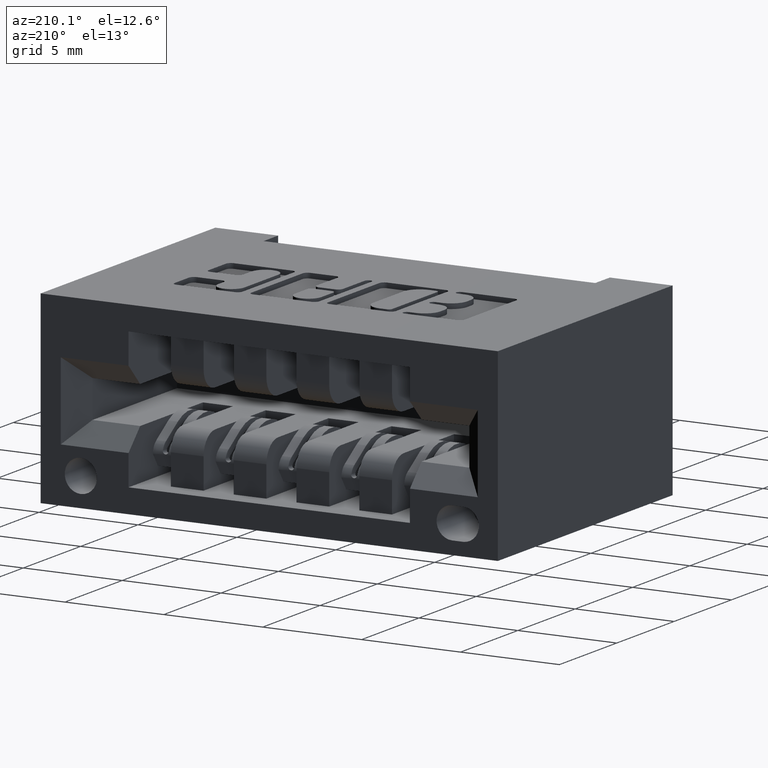
[diagram: clean part render]
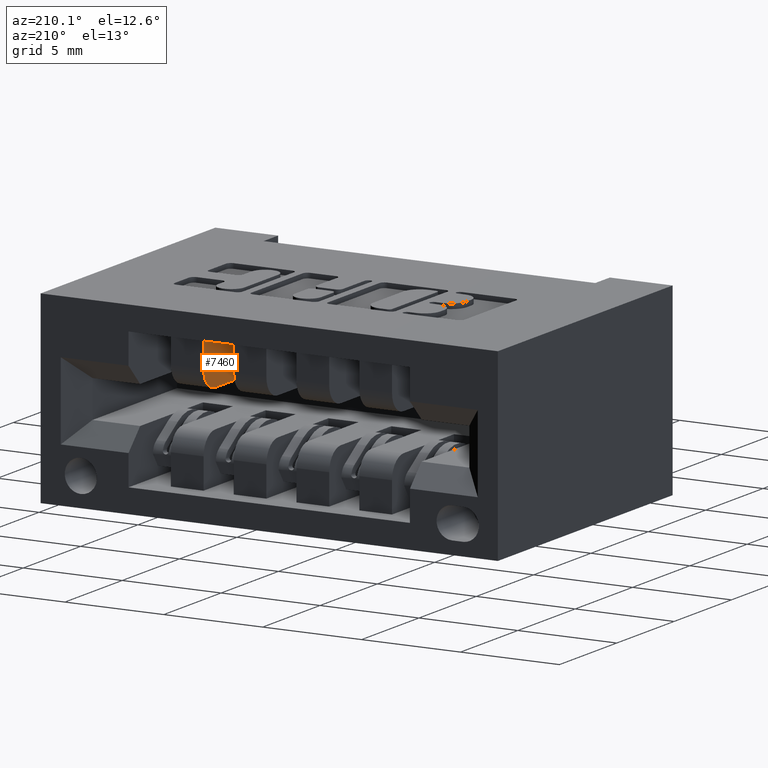
[diagram: same view with one face highlighted and labeled with its STEP entity id]
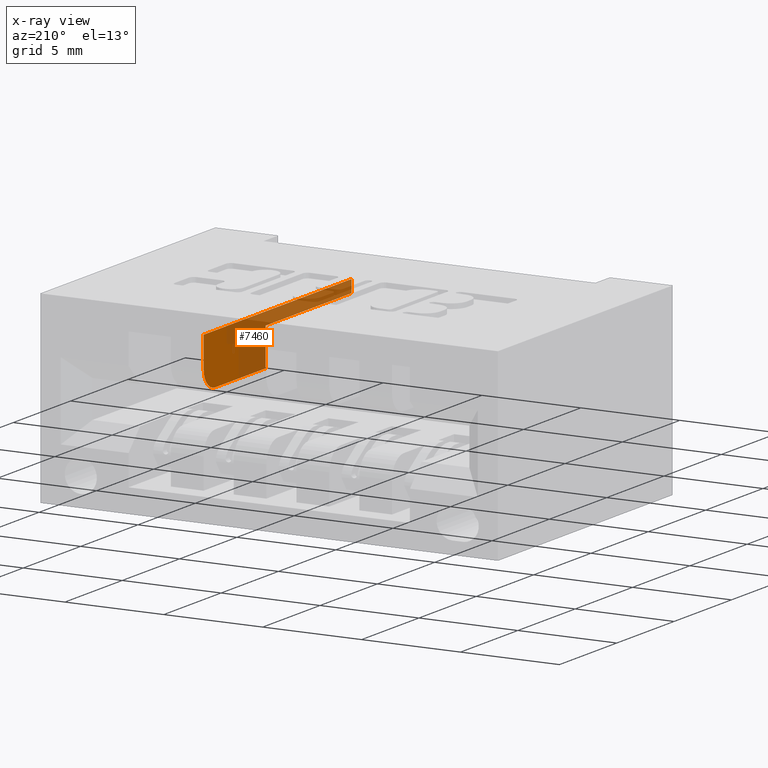
[diagram: x-ray of the same camera — body ghosted, the highlighted face saturated]
A machine part, auxiliary view. The second image highlights one B-rep face of the part: STEP entity #7460.
The next image is the same camera in x-ray: the body ghosted, the highlighted face saturated — about 64% of this face is hidden behind the body in this view.
In plain terms, the highlighted planar face has unit normal (1, 0, 0).
Its self-contained STEP definition (entity closure, byte-faithful):
#192 = LINE ( 'NONE', #6943, #6950 ) ;
#240 = CARTESIAN_POINT ( 'NONE',  ( 0.8724999999999999423, 0.3450000000000003064, -0.07249999999999993949 ) ) ;
#359 = ORIENTED_EDGE ( 'NONE', *, *, #2121, .F. ) ;
#411 = ORIENTED_EDGE ( 'NONE', *, *, #6529, .F. ) ;
#424 = CARTESIAN_POINT ( 'NONE',  ( 0.8724999999999999423, 0.3450000000000003064, -0.07249999999999993949 ) ) ;
#456 = CARTESIAN_POINT ( 'NONE',  ( 0.8724999999999999423, 0.5999999999999998668, -0.04750000000000020872 ) ) ;
#554 = VERTEX_POINT ( 'NONE', #5976 ) ;
#718 = FACE_OUTER_BOUND ( 'NONE', #4098, .T. ) ;
#892 = AXIS2_PLACEMENT_3D ( 'NONE', #4420, #6198, #3220 ) ;
#1067 = VERTEX_POINT ( 'NONE', #1497 ) ;
#1090 = VERTEX_POINT ( 'NONE', #424 ) ;
#1099 = DIRECTION ( 'NONE',  ( 0.0000000000000000000, 0.0000000000000000000, -1.000000000000000000 ) ) ;
#1119 = EDGE_CURVE ( 'NONE', #1067, #4970, #2183, .T. ) ;
#1401 = AXIS2_PLACEMENT_3D ( 'NONE', #3535, #2310, #1099 ) ;
#1497 = CARTESIAN_POINT ( 'NONE',  ( 0.8725000000000000533, 0.5179999999999997939, -0.1480000000000000204 ) ) ;
#1583 = LINE ( 'NONE', #456, #6142 ) ;
#1586 = VERTEX_POINT ( 'NONE', #7892 ) ;
#1590 = LINE ( 'NONE', #4070, #5394 ) ;
#1627 = LINE ( 'NONE', #4105, #5667 ) ;
#1654 = CARTESIAN_POINT ( 'NONE',  ( 0.8724999999999999423, 0.3450000000000001399, -0.1479999999999999927 ) ) ;
#1796 = VECTOR ( 'NONE', #2363, 39.37007874015748143 ) ;
#1871 = ORIENTED_EDGE ( 'NONE', *, *, #7705, .F. ) ;
#1882 = CARTESIAN_POINT ( 'NONE',  ( 0.8725000000000000533, 0.5580000000000000515, -0.1079999999999997490 ) ) ;
#2047 = EDGE_CURVE ( 'NONE', #4689, #1090, #5754, .T. ) ;
#2121 = EDGE_CURVE ( 'NONE', #1090, #4099, #1627, .T. ) ;
#2183 = CIRCLE ( 'NONE', #1401, 0.03999999999999998002 ) ;
#2194 = EDGE_CURVE ( 'NONE', #4689, #1586, #192, .T. ) ;
#2308 = DIRECTION ( 'NONE',  ( 0.0000000000000000000, -1.000000000000000000, 0.0000000000000000000 ) ) ;
#2310 = DIRECTION ( 'NONE',  ( 1.000000000000000000, -0.0000000000000000000, -0.0000000000000000000 ) ) ;
#2363 = DIRECTION ( 'NONE',  ( -0.0000000000000000000, -1.128862807299291159E-15, 1.000000000000000000 ) ) ;
#2697 = DIRECTION ( 'NONE',  ( -0.0000000000000000000, 1.000000000000000000, -0.0000000000000000000 ) ) ;
#2824 = ORIENTED_EDGE ( 'NONE', *, *, #2047, .F. ) ;
#2925 = LINE ( 'NONE', #5994, #1796 ) ;
#3103 = VECTOR ( 'NONE', #2697, 39.37007874015748143 ) ;
#3119 = ORIENTED_EDGE ( 'NONE', *, *, #1119, .F. ) ;
#3220 = DIRECTION ( 'NONE',  ( -0.0000000000000000000, 0.0000000000000000000, -1.000000000000000000 ) ) ;
#3535 = CARTESIAN_POINT ( 'NONE',  ( 0.8725000000000000533, 0.5180000000000000160, -0.1080000000000000543 ) ) ;
#3628 = EDGE_CURVE ( 'NONE', #4970, #554, #2925, .T. ) ;
#3971 = CARTESIAN_POINT ( 'NONE',  ( 0.8724999999999999423, 0.05000000000000000278, -0.07249999999999993949 ) ) ;
#4070 = CARTESIAN_POINT ( 'NONE',  ( 0.8724999999999999423, 0.2699999999999999067, -0.1480000000000000759 ) ) ;
#4098 = EDGE_LOOP ( 'NONE', ( #411, #7320, #3119, #1871, #359, #2824, #7713 ) ) ;
#4099 = VERTEX_POINT ( 'NONE', #1654 ) ;
#4105 = CARTESIAN_POINT ( 'NONE',  ( 0.8724999999999999423, 0.3450000000000001399, -0.1479999999999999927 ) ) ;
#4420 = CARTESIAN_POINT ( 'NONE',  ( 0.8724999999999999423, 0.3450000000000003064, -0.07249999999999993949 ) ) ;
#4689 = VERTEX_POINT ( 'NONE', #3971 ) ;
#4970 = VERTEX_POINT ( 'NONE', #1882 ) ;
#5394 = VECTOR ( 'NONE', #6508, 39.37007874015748143 ) ;
#5667 = VECTOR ( 'NONE', #6546, 39.37007874015748143 ) ;
#5754 = LINE ( 'NONE', #240, #3103 ) ;
#5828 = DIRECTION ( 'NONE',  ( 0.0000000000000000000, 0.0000000000000000000, 1.000000000000000000 ) ) ;
#5976 = CARTESIAN_POINT ( 'NONE',  ( 0.8725000000000000533, 0.5579999999999999405, -0.04750000000000020872 ) ) ;
#5994 = CARTESIAN_POINT ( 'NONE',  ( 0.8725000000000000533, 0.5579999999999999405, -0.04750000000000020872 ) ) ;
#6142 = VECTOR ( 'NONE', #2308, 39.37007874015748143 ) ;
#6198 = DIRECTION ( 'NONE',  ( 1.000000000000000000, 0.0000000000000000000, -0.0000000000000000000 ) ) ;
#6273 = PLANE ( 'NONE',  #892 ) ;
#6508 = DIRECTION ( 'NONE',  ( 0.0000000000000000000, 1.000000000000000000, 0.0000000000000000000 ) ) ;
#6529 = EDGE_CURVE ( 'NONE', #554, #1586, #1583, .T. ) ;
#6546 = DIRECTION ( 'NONE',  ( -0.0000000000000000000, -1.809170856731298844E-15, -1.000000000000000000 ) ) ;
#6943 = CARTESIAN_POINT ( 'NONE',  ( 0.8724999999999999423, 0.05000000000000000278, -0.1500000000000000777 ) ) ;
#6950 = VECTOR ( 'NONE', #5828, 39.37007874015748143 ) ;
#7320 = ORIENTED_EDGE ( 'NONE', *, *, #3628, .F. ) ;
#7460 = ADVANCED_FACE ( 'NONE', ( #718 ), #6273, .F. ) ;
#7705 = EDGE_CURVE ( 'NONE', #4099, #1067, #1590, .T. ) ;
#7713 = ORIENTED_EDGE ( 'NONE', *, *, #2194, .T. ) ;
#7892 = CARTESIAN_POINT ( 'NONE',  ( 0.8724999999999999423, 0.05000000000000000971, -0.04750000000000020872 ) ) ;